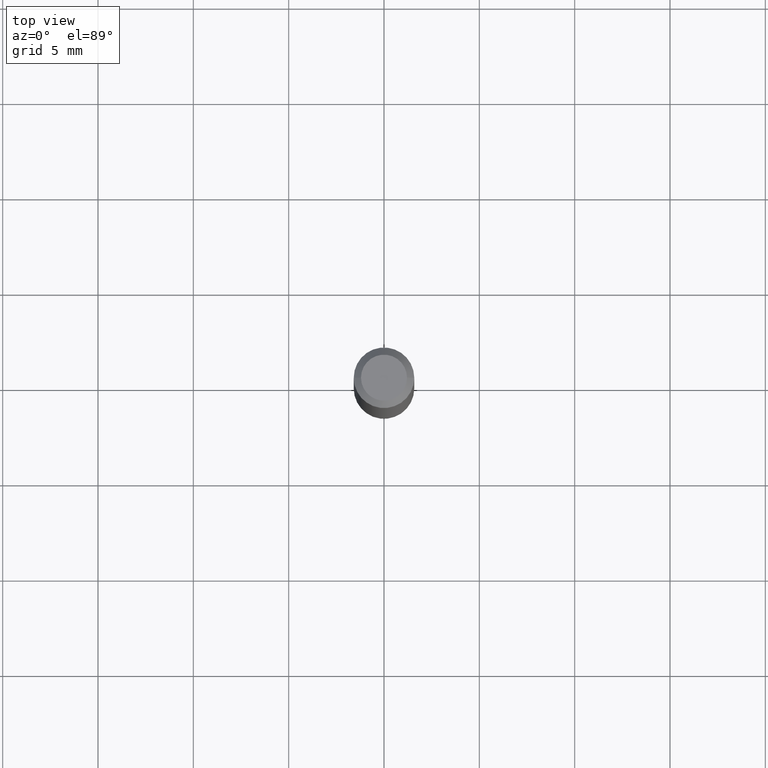
[diagram: clean part render]
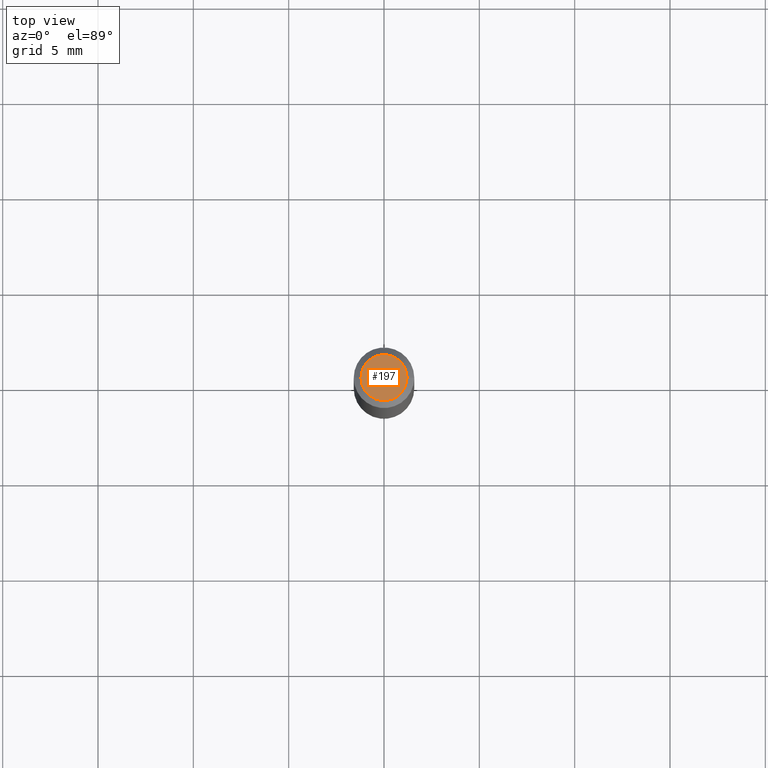
[diagram: same view with one face highlighted and labeled with its STEP entity id]
A machine part, top view. The second image highlights one B-rep face of the part: STEP entity #197.
In plain terms, the highlighted planar face has unit normal (0, -0, -1).
Its self-contained STEP definition (entity closure, byte-faithful):
#4 = AXIS2_PLACEMENT_3D ( 'NONE', #12, #63, #351 ) ;
#12 = CARTESIAN_POINT ( 'NONE',  ( -3.597438323505677396E-45, 5.136188506020282969E-31, 1.471062854863228050E-16 ) ) ;
#24 = EDGE_LOOP ( 'NONE', ( #376, #119 ) ) ;
#29 = VERTEX_POINT ( 'NONE', #255 ) ;
#63 = DIRECTION ( 'NONE',  ( -2.445468806185136597E-29, 3.491481338843145583E-15, 1.000000000000000000 ) ) ;
#79 = AXIS2_PLACEMENT_3D ( 'NONE', #188, #285, #430 ) ;
#83 = EDGE_CURVE ( 'NONE', #29, #212, #358, .T. ) ;
#88 = CIRCLE ( 'NONE', #79, 0.04749999999999999362 ) ;
#119 = ORIENTED_EDGE ( 'NONE', *, *, #427, .T. ) ;
#139 = DIRECTION ( 'NONE',  ( -1.000000000000000000, 6.982962677686265922E-15, -4.876176775795935793E-29 ) ) ;
#148 = CARTESIAN_POINT ( 'NONE',  ( 0.04749999999999999362, -4.035134999187575172E-16, 1.471062854863253934E-16 ) ) ;
#179 = DIRECTION ( 'NONE',  ( 2.438088387897960049E-29, -3.491481338843145188E-15, -1.000000000000000000 ) ) ;
#188 = CARTESIAN_POINT ( 'NONE',  ( -3.597438323505677396E-45, 5.136188506020282969E-31, 1.471062854863228050E-16 ) ) ;
#197 = ADVANCED_FACE ( 'NONE', ( #215 ), #357, .F. ) ;
#212 = VERTEX_POINT ( 'NONE', #148 ) ;
#215 = FACE_OUTER_BOUND ( 'NONE', #24, .T. ) ;
#219 = CARTESIAN_POINT ( 'NONE',  ( 3.316907271900976096E-16, 0.04749999999999999362, -9.229222085188799396E-17 ) ) ;
#255 = CARTESIAN_POINT ( 'NONE',  ( -0.04749999999999999362, 3.578768372314212971E-16, 1.471062854863204137E-16 ) ) ;
#285 = DIRECTION ( 'NONE',  ( -2.445468806185136597E-29, 3.491481338843145583E-15, 1.000000000000000000 ) ) ;
#325 = AXIS2_PLACEMENT_3D ( 'NONE', #219, #179, #139 ) ;
#351 = DIRECTION ( 'NONE',  ( 1.000000000000000000, -6.982962677686267499E-15, 4.852736867747366768E-29 ) ) ;
#357 = PLANE ( 'NONE',  #325 ) ;
#358 = CIRCLE ( 'NONE', #4, 0.04749999999999999362 ) ;
#376 = ORIENTED_EDGE ( 'NONE', *, *, #83, .T. ) ;
#427 = EDGE_CURVE ( 'NONE', #212, #29, #88, .T. ) ;
#430 = DIRECTION ( 'NONE',  ( 1.000000000000000000, -6.982962677686267499E-15, 4.852736867747366768E-29 ) ) ;